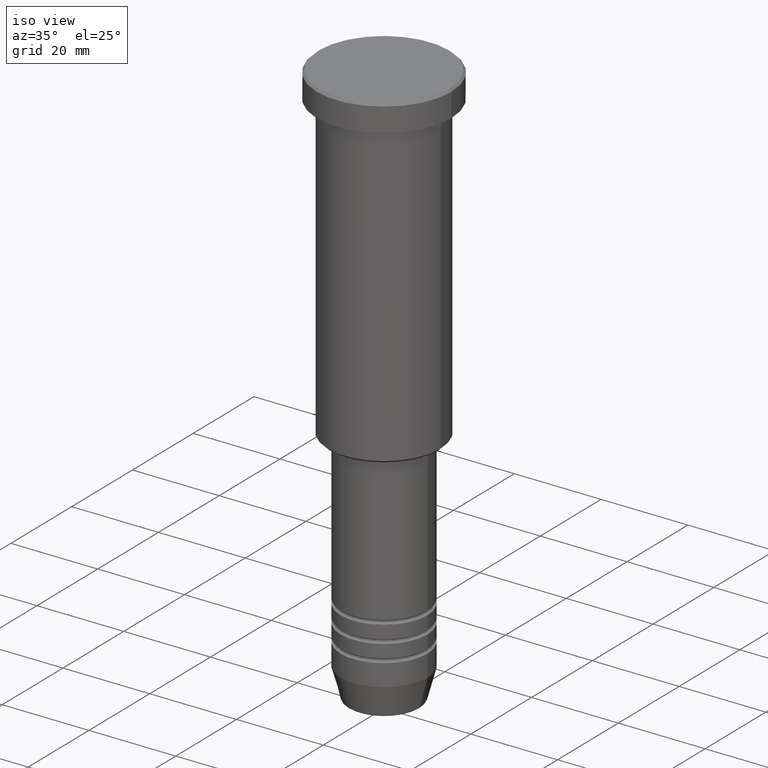
[diagram: clean part render]
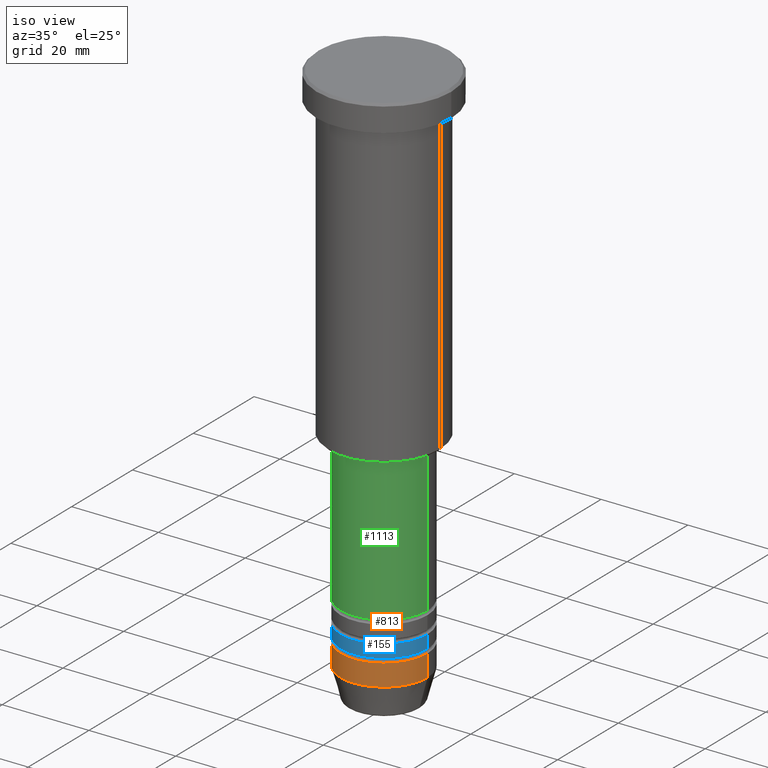
[diagram: same view with three faces highlighted in distinct colors, each labeled with its STEP entity id]
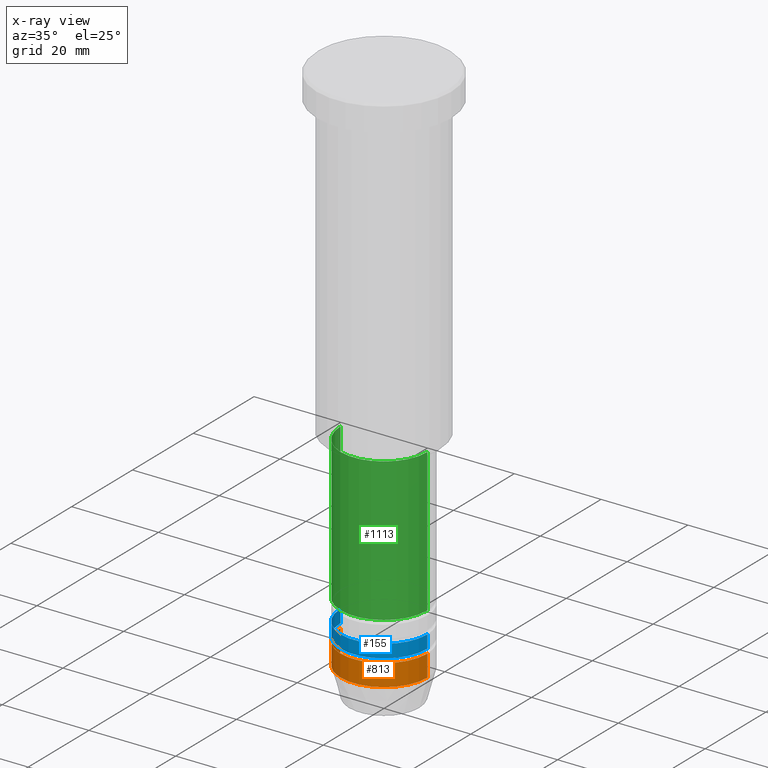
[diagram: x-ray of the same camera — body ghosted, the three highlighted faces saturated]
A machine part, iso view with three faces highlighted in distinct colors.
The next image is the same camera in x-ray (body ghosted, the three faces saturated) — at least one of them is partly hidden behind the body in this view.
Their STEP definitions:

[orange] entity #813 — the highlighted cylindrical surface (partial cylindrical patch) has radius 10 mm, axis along (-0, -0, 1).
#5 = VERTEX_POINT ( 'NONE', #932 ) ;
#9 = VECTOR ( 'NONE', #179, 1000.000000000000000 ) ;
#51 = ORIENTED_EDGE ( 'NONE', *, *, #407, .F. ) ;
#76 = DIRECTION ( 'NONE',  ( 1.000000000000000000, 0.000000000000000000, 0.000000000000000000 ) ) ;
#102 = EDGE_CURVE ( 'NONE', #5, #191, #807, .T. ) ;
#179 = DIRECTION ( 'NONE',  ( -0.000000000000000000, -0.000000000000000000, 1.000000000000000000 ) ) ;
#185 = DIRECTION ( 'NONE',  ( 1.000000000000000000, 0.000000000000000000, 0.000000000000000000 ) ) ;
#191 = VERTEX_POINT ( 'NONE', #740 ) ;
#218 = CARTESIAN_POINT ( 'NONE',  ( 10.00000000000000000, 0.000000000000000000, -119.0000000000000000 ) ) ;
#267 = DIRECTION ( 'NONE',  ( -0.000000000000000000, -0.000000000000000000, 1.000000000000000000 ) ) ;
#334 = ORIENTED_EDGE ( 'NONE', *, *, #445, .T. ) ;
#348 = AXIS2_PLACEMENT_3D ( 'NONE', #978, #913, #185 ) ;
#352 = DIRECTION ( 'NONE',  ( -0.000000000000000000, -0.000000000000000000, 1.000000000000000000 ) ) ;
#399 = VECTOR ( 'NONE', #465, 1000.000000000000000 ) ;
#407 = EDGE_CURVE ( 'NONE', #191, #444, #462, .T. ) ;
#444 = VERTEX_POINT ( 'NONE', #218 ) ;
#445 = EDGE_CURVE ( 'NONE', #5, #493, #834, .T. ) ;
#446 = CYLINDRICAL_SURFACE ( 'NONE', #348, 10.00000000000000000 ) ;
#462 = CIRCLE ( 'NONE', #683, 10.00000000000000000 ) ;
#465 = DIRECTION ( 'NONE',  ( -0.000000000000000000, -0.000000000000000000, 1.000000000000000000 ) ) ;
#469 = EDGE_CURVE ( 'NONE', #493, #444, #717, .T. ) ;
#493 = VERTEX_POINT ( 'NONE', #1182 ) ;
#556 = EDGE_LOOP ( 'NONE', ( #817, #334, #959, #51 ) ) ;
#624 = FACE_OUTER_BOUND ( 'NONE', #556, .T. ) ;
#644 = DIRECTION ( 'NONE',  ( 1.000000000000000000, 0.000000000000000000, 0.000000000000000000 ) ) ;
#683 = AXIS2_PLACEMENT_3D ( 'NONE', #1162, #352, #76 ) ;
#717 = LINE ( 'NONE', #996, #399 ) ;
#740 = CARTESIAN_POINT ( 'NONE',  ( -10.00000000000000000, 1.224646799147353256E-15, -119.0000000000000000 ) ) ;
#807 = LINE ( 'NONE', #891, #9 ) ;
#813 = ADVANCED_FACE ( 'NONE', ( #624 ), #446, .T. ) ;
#817 = ORIENTED_EDGE ( 'NONE', *, *, #102, .F. ) ;
#834 = CIRCLE ( 'NONE', #1006, 10.00000000000000000 ) ;
#852 = CARTESIAN_POINT ( 'NONE',  ( 0.000000000000000000, 0.000000000000000000, -124.0000000000000000 ) ) ;
#891 = CARTESIAN_POINT ( 'NONE',  ( -10.00000000000000000, 1.224646799147353256E-15, 0.000000000000000000 ) ) ;
#913 = DIRECTION ( 'NONE',  ( -0.000000000000000000, -0.000000000000000000, 1.000000000000000000 ) ) ;
#932 = CARTESIAN_POINT ( 'NONE',  ( -10.00000000000000000, 1.224646799147353256E-15, -124.0000000000000000 ) ) ;
#959 = ORIENTED_EDGE ( 'NONE', *, *, #469, .T. ) ;
#978 = CARTESIAN_POINT ( 'NONE',  ( 0.000000000000000000, 0.000000000000000000, 0.000000000000000000 ) ) ;
#996 = CARTESIAN_POINT ( 'NONE',  ( 10.00000000000000000, 0.000000000000000000, 0.000000000000000000 ) ) ;
#1006 = AXIS2_PLACEMENT_3D ( 'NONE', #852, #267, #644 ) ;
#1162 = CARTESIAN_POINT ( 'NONE',  ( 0.000000000000000000, 0.000000000000000000, -119.0000000000000000 ) ) ;
#1182 = CARTESIAN_POINT ( 'NONE',  ( 10.00000000000000000, 0.000000000000000000, -124.0000000000000000 ) ) ;

[blue] entity #155 — the highlighted cylindrical surface (partial cylindrical patch) has radius 10 mm, axis along (-0, -0, 1).
#27 = VECTOR ( 'NONE', #572, 1000.000000000000000 ) ;
#67 = DIRECTION ( 'NONE',  ( 1.000000000000000000, 0.000000000000000000, 0.000000000000000000 ) ) ;
#89 = CARTESIAN_POINT ( 'NONE',  ( 10.00000000000000178, 0.000000000000000000, -117.9999999999998863 ) ) ;
#101 = ORIENTED_EDGE ( 'NONE', *, *, #415, .F. ) ;
#133 = EDGE_LOOP ( 'NONE', ( #101, #182, #337, #262 ) ) ;
#143 = AXIS2_PLACEMENT_3D ( 'NONE', #374, #629, #166 ) ;
#155 = ADVANCED_FACE ( 'NONE', ( #544 ), #252, .T. ) ;
#165 = VERTEX_POINT ( 'NONE', #258 ) ;
#166 = DIRECTION ( 'NONE',  ( 1.000000000000000000, 0.000000000000000000, 0.000000000000000000 ) ) ;
#177 = VERTEX_POINT ( 'NONE', #186 ) ;
#182 = ORIENTED_EDGE ( 'NONE', *, *, #997, .T. ) ;
#186 = CARTESIAN_POINT ( 'NONE',  ( -10.00000000000000178, 1.224646799147353454E-15, -117.9999999999998863 ) ) ;
#190 = DIRECTION ( 'NONE',  ( -0.000000000000000000, -0.000000000000000000, 1.000000000000000000 ) ) ;
#252 = CYLINDRICAL_SURFACE ( 'NONE', #143, 10.00000000000000178 ) ;
#258 = CARTESIAN_POINT ( 'NONE',  ( -10.00000000000000000, 1.224646799147353256E-15, -114.9999999999998863 ) ) ;
#262 = ORIENTED_EDGE ( 'NONE', *, *, #520, .F. ) ;
#287 = AXIS2_PLACEMENT_3D ( 'NONE', #313, #457, #67 ) ;
#313 = CARTESIAN_POINT ( 'NONE',  ( 0.000000000000000000, 0.000000000000000000, -114.9999999999998863 ) ) ;
#337 = ORIENTED_EDGE ( 'NONE', *, *, #507, .T. ) ;
#374 = CARTESIAN_POINT ( 'NONE',  ( 0.000000000000000000, 0.000000000000000000, 0.000000000000000000 ) ) ;
#382 = DIRECTION ( 'NONE',  ( -0.000000000000000000, -0.000000000000000000, 1.000000000000000000 ) ) ;
#415 = EDGE_CURVE ( 'NONE', #177, #165, #429, .T. ) ;
#429 = LINE ( 'NONE', #461, #27 ) ;
#457 = DIRECTION ( 'NONE',  ( -0.000000000000000000, -0.000000000000000000, 1.000000000000000000 ) ) ;
#461 = CARTESIAN_POINT ( 'NONE',  ( -10.00000000000000178, 1.224646799147353454E-15, 0.000000000000000000 ) ) ;
#476 = CARTESIAN_POINT ( 'NONE',  ( 10.00000000000000000, 0.000000000000000000, -114.9999999999998863 ) ) ;
#507 = EDGE_CURVE ( 'NONE', #946, #1042, #1180, .T. ) ;
#520 = EDGE_CURVE ( 'NONE', #165, #1042, #1155, .T. ) ;
#544 = FACE_OUTER_BOUND ( 'NONE', #133, .T. ) ;
#548 = CIRCLE ( 'NONE', #841, 10.00000000000000178 ) ;
#572 = DIRECTION ( 'NONE',  ( -0.000000000000000000, -0.000000000000000000, 1.000000000000000000 ) ) ;
#629 = DIRECTION ( 'NONE',  ( -0.000000000000000000, -0.000000000000000000, 1.000000000000000000 ) ) ;
#841 = AXIS2_PLACEMENT_3D ( 'NONE', #1163, #382, #1075 ) ;
#946 = VERTEX_POINT ( 'NONE', #89 ) ;
#997 = EDGE_CURVE ( 'NONE', #177, #946, #548, .T. ) ;
#1005 = CARTESIAN_POINT ( 'NONE',  ( 10.00000000000000178, 0.000000000000000000, 0.000000000000000000 ) ) ;
#1042 = VERTEX_POINT ( 'NONE', #476 ) ;
#1075 = DIRECTION ( 'NONE',  ( 1.000000000000000000, 0.000000000000000000, 0.000000000000000000 ) ) ;
#1134 = VECTOR ( 'NONE', #190, 1000.000000000000000 ) ;
#1155 = CIRCLE ( 'NONE', #287, 10.00000000000000000 ) ;
#1163 = CARTESIAN_POINT ( 'NONE',  ( 0.000000000000000000, 0.000000000000000000, -117.9999999999998863 ) ) ;
#1180 = LINE ( 'NONE', #1005, #1134 ) ;

[green] entity #1113 — the highlighted cylindrical surface (partial cylindrical patch) has radius 10 mm, axis along (-0, -0, 1).
#44 = DIRECTION ( 'NONE',  ( -0.000000000000000000, -0.000000000000000000, 1.000000000000000000 ) ) ;
#50 = CARTESIAN_POINT ( 'NONE',  ( -10.00000000000000178, 1.224646799147353454E-15, -109.9999999999998863 ) ) ;
#127 = ORIENTED_EDGE ( 'NONE', *, *, #1121, .T. ) ;
#138 = FACE_OUTER_BOUND ( 'NONE', #850, .T. ) ;
#169 = ORIENTED_EDGE ( 'NONE', *, *, #486, .T. ) ;
#183 = CARTESIAN_POINT ( 'NONE',  ( 10.00000000000000000, 0.000000000000000000, 0.000000000000000000 ) ) ;
#198 = CIRCLE ( 'NONE', #660, 10.00000000000000178 ) ;
#232 = VECTOR ( 'NONE', #912, 1000.000000000000000 ) ;
#233 = AXIS2_PLACEMENT_3D ( 'NONE', #1077, #454, #642 ) ;
#235 = CARTESIAN_POINT ( 'NONE',  ( 0.000000000000000000, 0.000000000000000000, 0.000000000000000000 ) ) ;
#255 = ORIENTED_EDGE ( 'NONE', *, *, #1048, .F. ) ;
#272 = VERTEX_POINT ( 'NONE', #494 ) ;
#311 = DIRECTION ( 'NONE',  ( -0.000000000000000000, -0.000000000000000000, 1.000000000000000000 ) ) ;
#371 = CIRCLE ( 'NONE', #233, 9.999999999999998224 ) ;
#380 = LINE ( 'NONE', #1096, #1160 ) ;
#417 = CARTESIAN_POINT ( 'NONE',  ( 0.000000000000000000, 0.000000000000000000, -109.9999999999998863 ) ) ;
#454 = DIRECTION ( 'NONE',  ( -0.000000000000000000, -0.000000000000000000, 1.000000000000000000 ) ) ;
#458 = ORIENTED_EDGE ( 'NONE', *, *, #806, .F. ) ;
#486 = EDGE_CURVE ( 'NONE', #798, #272, #1001, .T. ) ;
#494 = CARTESIAN_POINT ( 'NONE',  ( 9.999999999999998224, 0.000000000000000000, -76.99999999999998579 ) ) ;
#569 = AXIS2_PLACEMENT_3D ( 'NONE', #235, #44, #1123 ) ;
#616 = CYLINDRICAL_SURFACE ( 'NONE', #569, 10.00000000000000000 ) ;
#642 = DIRECTION ( 'NONE',  ( 1.000000000000000000, 0.000000000000000000, 0.000000000000000000 ) ) ;
#660 = AXIS2_PLACEMENT_3D ( 'NONE', #417, #311, #695 ) ;
#695 = DIRECTION ( 'NONE',  ( 1.000000000000000000, 0.000000000000000000, 0.000000000000000000 ) ) ;
#798 = VERTEX_POINT ( 'NONE', #1072 ) ;
#806 = EDGE_CURVE ( 'NONE', #1097, #272, #371, .T. ) ;
#850 = EDGE_LOOP ( 'NONE', ( #255, #127, #169, #458 ) ) ;
#869 = CARTESIAN_POINT ( 'NONE',  ( -9.999999999999998224, 1.224646799147353256E-15, -76.99999999999998579 ) ) ;
#882 = VERTEX_POINT ( 'NONE', #50 ) ;
#912 = DIRECTION ( 'NONE',  ( -0.000000000000000000, -0.000000000000000000, 1.000000000000000000 ) ) ;
#1001 = LINE ( 'NONE', #183, #232 ) ;
#1048 = EDGE_CURVE ( 'NONE', #882, #1097, #380, .T. ) ;
#1072 = CARTESIAN_POINT ( 'NONE',  ( 10.00000000000000178, 0.000000000000000000, -109.9999999999998863 ) ) ;
#1077 = CARTESIAN_POINT ( 'NONE',  ( 0.000000000000000000, 0.000000000000000000, -76.99999999999998579 ) ) ;
#1096 = CARTESIAN_POINT ( 'NONE',  ( -10.00000000000000000, 1.224646799147353256E-15, 0.000000000000000000 ) ) ;
#1097 = VERTEX_POINT ( 'NONE', #869 ) ;
#1099 = DIRECTION ( 'NONE',  ( -0.000000000000000000, -0.000000000000000000, 1.000000000000000000 ) ) ;
#1113 = ADVANCED_FACE ( 'NONE', ( #138 ), #616, .T. ) ;
#1121 = EDGE_CURVE ( 'NONE', #882, #798, #198, .T. ) ;
#1123 = DIRECTION ( 'NONE',  ( 1.000000000000000000, 0.000000000000000000, 0.000000000000000000 ) ) ;
#1160 = VECTOR ( 'NONE', #1099, 1000.000000000000000 ) ;